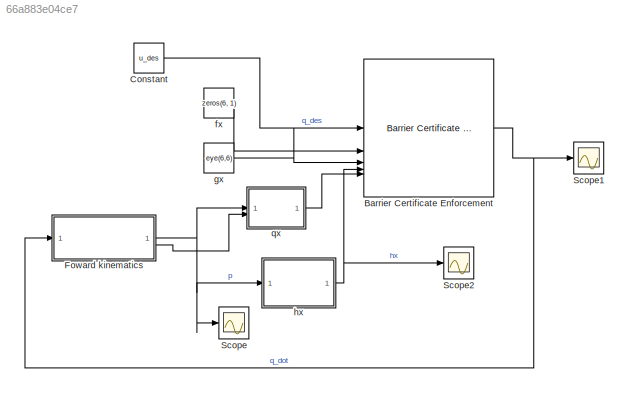
MODEL slx_66a883e04ce7
KIND model
CONFIG AbsTol = auto
CONFIG EnableMultiTasking = off
CONFIG FixedStep = auto
CONFIG MaxStep = auto
CONFIG MinStep = auto
CONFIG RelTol = 1e-3
CONFIG SampleTimeConstraint = Unconstrained
CONFIG SolverName = VariableStepAuto
CONFIG StartTime = 0.0
CONFIG StopTime = Tf
BLOCK [Reference] Barrier Certificate Enforcement  REF=slctrl_constraint/Barrier Certificate Enforcement
  LibrarySourceBlock = slctrlblks/Constraint Control/Barrier Certificate Enforcement
  SourceBlock = slctrl_constraint/Barrier Certificate Enforcement
  SourceType = Barrier Certificate Enforcement
BLOCK [Constant] Constant
  Value = u_des
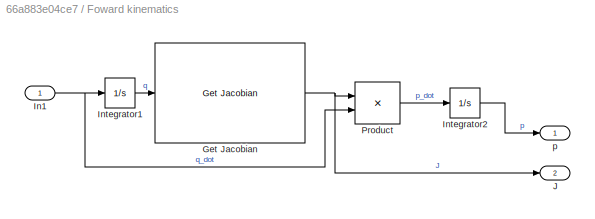
BLOCK [SubSystem] Foward kinematics
BLOCK [Reference] Foward kinematics/Get Jacobian  REF=robotmaniplib/Get Jacobian
  SourceBlock = robotmaniplib/Get Jacobian
  SourceType = Get Jacobian
BLOCK [Inport] Foward kinematics/In1
BLOCK [Integrator] Foward kinematics/Integrator1
BLOCK [Integrator] Foward kinematics/Integrator2
  InitialCondition = [0;0;0;InitPos]
BLOCK [Outport] Foward kinematics/J
  Port = 2
BLOCK [Product] Foward kinematics/Product
  Multiplication = Matrix(*)
BLOCK [Outport] Foward kinematics/p
BLOCK [Scope] Scope
  Floating = off
  NumInputPorts = 1
  ScopeSpecificationString = Simulink.scopes.TimeScopeBlockCfg('CurrentConfiguration', extmgr.ConfigurationSet(extmgr.Configuration('Core','General UI',true),extmgr.Configuration('Core','Source UI',true),extmgr.Configuration('Sources','WiredSimulink',true),extmgr.Configuration('Visuals','Time Domain',true,'SerializedDisplays',{struct('MinYLimReal','-0.43145','MaxYLimReal','2.58768','YLabelReal','','MinYLimMag','0.00000','MaxY...<+1468ch>
BLOCK [Scope] Scope1
  Floating = off
  NumInputPorts = 1
  ScopeSpecificationString = Simulink.scopes.TimeScopeBlockCfg('CurrentConfiguration', extmgr.ConfigurationSet(extmgr.Configuration('Core','General UI',true),extmgr.Configuration('Core','Source UI',true),extmgr.Configuration('Sources','WiredSimulink',true,'DataLoggingVariableName','ScopeData1'),extmgr.Configuration('Visuals','Time Domain',true,'SerializedDisplays',{struct('MinYLimReal','0.17515','MaxYLimReal','1.13213','YLabe...<+1549ch>
BLOCK [Scope] Scope2
  Floating = off
  NumInputPorts = 1
  ScopeSpecificationString = Simulink.scopes.TimeScopeBlockCfg('CurrentConfiguration', extmgr.ConfigurationSet(extmgr.Configuration('Core','General UI',true),extmgr.Configuration('Core','Source UI',true),extmgr.Configuration('Sources','WiredSimulink',true,'DataLoggingVariableName','ScopeData2'),extmgr.Configuration('Visuals','Time Domain',true,'SerializedDisplays',{struct('MinYLimReal','0.64776','MaxYLimReal','0.85538','YLabe...<+1494ch>
BLOCK [Constant] fx
  Value = zeros(6, 1)
BLOCK [Constant] gx
  Value = eye(6,6)
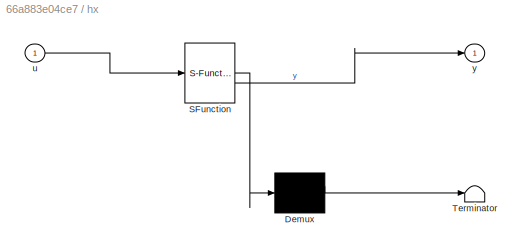
BLOCK [SubSystem] hx
  ErrorFcn = Stateflow.Translate.translate
  PermitHierarchicalResolution = ExplicitOnly
  SFBlockType = MATLAB Function
  TreatAsAtomicUnit = on
BLOCK [Demux] hx/ Demux 
  Outputs = 1
BLOCK [S-Function] hx/ SFunction 
  EnableBusSupport = on
  FunctionName = sf_sfun
  PortCounts = [1 2]
  SFcnIsStateOwnerBlock = off
  SFunctionDeploymentMode = off
  Tag = Stateflow S-Function 2
BLOCK [Terminator] hx/ Terminator 
BLOCK [Inport] hx/u
BLOCK [Outport] hx/y
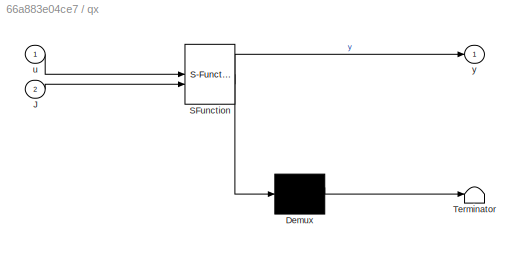
BLOCK [SubSystem] qx
  ErrorFcn = Stateflow.Translate.translate
  PermitHierarchicalResolution = ExplicitOnly
  SFBlockType = MATLAB Function
  TreatAsAtomicUnit = on
BLOCK [Demux] qx/ Demux 
  Outputs = 1
BLOCK [S-Function] qx/ SFunction 
  EnableBusSupport = on
  FunctionName = sf_sfun
  PortCounts = [2 2]
  SFcnIsStateOwnerBlock = off
  SFunctionDeploymentMode = off
  Tag = Stateflow S-Function 1
BLOCK [Terminator] qx/ Terminator 
BLOCK [Inport] qx/J
  Port = 2
BLOCK [Inport] qx/u
BLOCK [Outport] qx/y
NET Barrier Certificate Enforcement:1 -> Foward kinematics:1, Scope1:1
LINE Constant:1 -> Barrier Certificate Enforcement:1
NET Foward kinematics/Get Jacobian:1 -> Foward kinematics/J:1, Foward kinematics/Product:1
NET Foward kinematics/In1:1 -> Foward kinematics/Integrator1:1, Foward kinematics/Product:2
LINE Foward kinematics/Integrator1:1 -> Foward kinematics/Get Jacobian:1
LINE Foward kinematics/Integrator2:1 -> Foward kinematics/p:1
LINE Foward kinematics/Product:1 -> Foward kinematics/Integrator2:1
NET Foward kinematics:1 -> Scope:1, hx:1, qx:1
LINE Foward kinematics:2 -> qx:2
LINE fx:1 -> Barrier Certificate Enforcement:2
LINE gx:1 -> Barrier Certificate Enforcement:3
NET hx:1 -> Barrier Certificate Enforcement:4, Scope2:1
LINE qx:1 -> Barrier Certificate Enforcement:5
note: NET lines group one-source signal fan-out (src -> all destinations, sorted); 1:1 wires keep LINE
CHART hx states=1 transitions=1
  STATE_LABEL 'eML_blk_kernel()'
  STATE_LABEL "SCRIPT:\nfunction y = h(u)\n\np = u(4:6);\n\nR = 0.1;\nR_w = 0.1;\n\np_obs = [0 0.4 1]';\n\n\ny = norm(p - p_obs)^2 - (R + R_w)^2;\n"
CHART qx states=1 transitions=1
  STATE_LABEL 'eML_blk_kernel()'
  STATE_LABEL "SCRIPT:\nfunction y = qx(u, J)\n\np = u(4:6);\np_obs = [0 0.4 1]';\n\n\n\ny = 2*(p-p_obs)'*J(4:6, :);\n"
CHART  states=0 transitions=0
CHART  states=0 transitions=0
